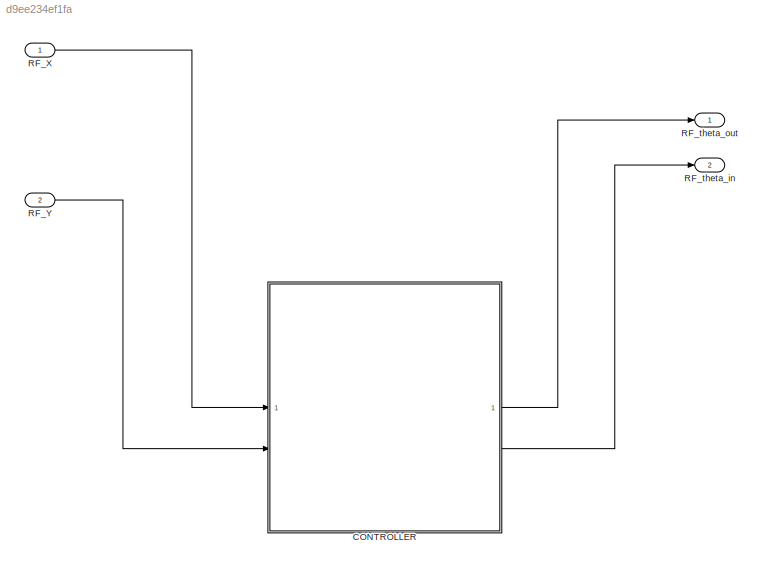
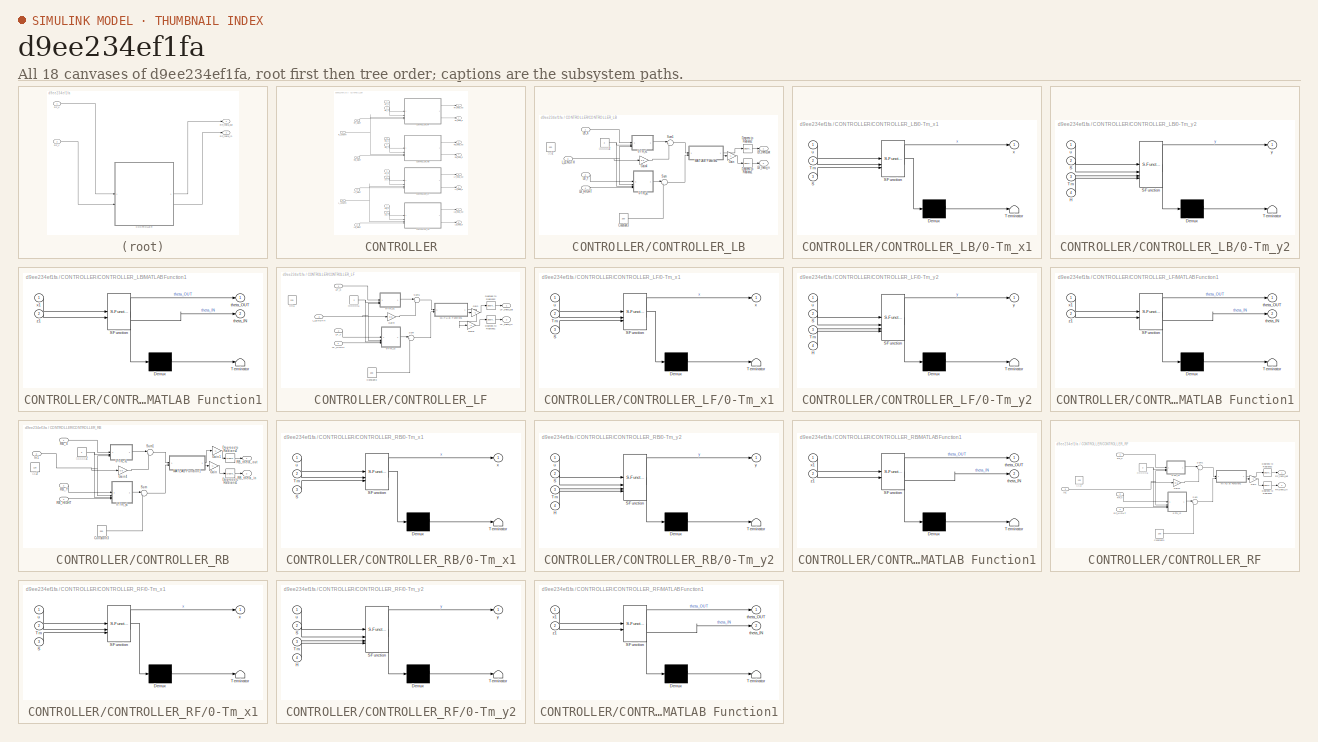
[diagram: thumbnail index - all 18 canvases of the model, root first then tree order]
MODEL slx_d9ee234ef1fa
KIND model
CONFIG AbsTol = auto
CONFIG EnableMultiTasking = off
CONFIG FixedStep = 0.001
CONFIG MaxStep = auto
CONFIG MinStep = auto
CONFIG RelTol = 1e-3
CONFIG SampleTimeConstraint = Unconstrained
CONFIG SolverName = FixedStepAuto
CONFIG StartTime = 0.0
CONFIG StopTime = 10.0
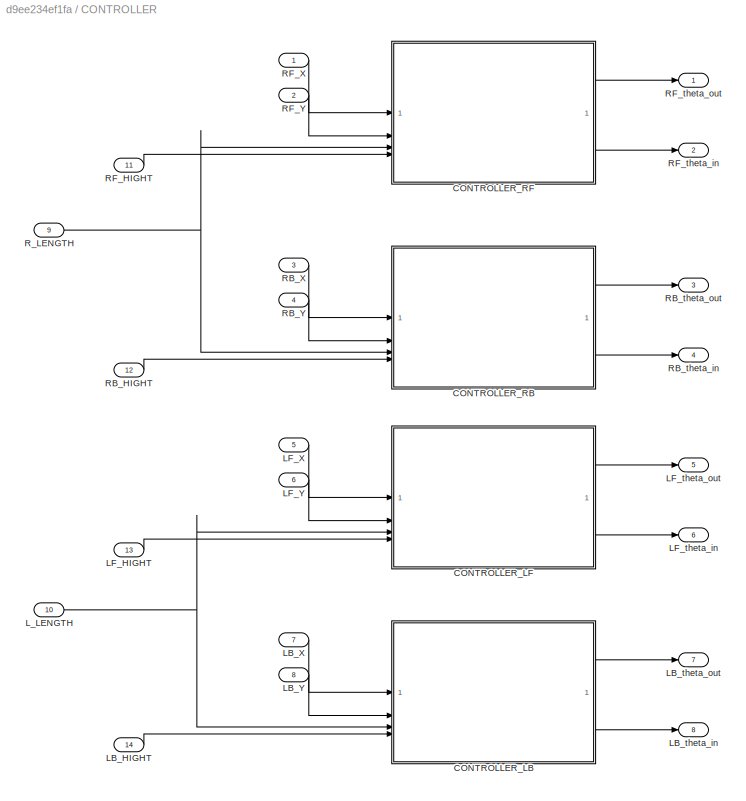
BLOCK [SubSystem] CONTROLLER
BLOCK [SubSystem] CONTROLLER/CONTROLLER_LB
BLOCK [SubSystem] CONTROLLER/CONTROLLER_LB/0-Tm_x1
  ErrorFcn = Stateflow.Translate.translate
  PermitHierarchicalResolution = ExplicitOnly
  SFBlockType = MATLAB Function
  TreatAsAtomicUnit = on
BLOCK [Demux] CONTROLLER/CONTROLLER_LB/0-Tm_x1/ Demux 
  Outputs = 1
BLOCK [S-Function] CONTROLLER/CONTROLLER_LB/0-Tm_x1/ SFunction 
  EnableBusSupport = on
  FunctionName = sf_sfun
  PortCounts = [3 2]
  SFcnIsStateOwnerBlock = off
  SFunctionDeploymentMode = off
  Tag = Stateflow S-Function 10
BLOCK [Terminator] CONTROLLER/CONTROLLER_LB/0-Tm_x1/ Terminator 
BLOCK [Inport] CONTROLLER/CONTROLLER_LB/0-Tm_x1/S
  Port = 3
BLOCK [Inport] CONTROLLER/CONTROLLER_LB/0-Tm_x1/Tm
  Port = 2
BLOCK [Inport] CONTROLLER/CONTROLLER_LB/0-Tm_x1/u
BLOCK [Outport] CONTROLLER/CONTROLLER_LB/0-Tm_x1/x
  VectorParamsAs1DForOutWhenUnconnected = off
BLOCK [SubSystem] CONTROLLER/CONTROLLER_LB/0-Tm_y2
  ErrorFcn = Stateflow.Translate.translate
  PermitHierarchicalResolution = ExplicitOnly
  SFBlockType = MATLAB Function
  TreatAsAtomicUnit = on
BLOCK [Demux] CONTROLLER/CONTROLLER_LB/0-Tm_y2/ Demux 
  Outputs = 1
BLOCK [S-Function] CONTROLLER/CONTROLLER_LB/0-Tm_y2/ SFunction 
  EnableBusSupport = on
  FunctionName = sf_sfun
  PortCounts = [4 2]
  SFcnIsStateOwnerBlock = off
  SFunctionDeploymentMode = off
  Tag = Stateflow S-Function 11
BLOCK [Terminator] CONTROLLER/CONTROLLER_LB/0-Tm_y2/ Terminator 
BLOCK [Inport] CONTROLLER/CONTROLLER_LB/0-Tm_y2/H
  Port = 4
BLOCK [Inport] CONTROLLER/CONTROLLER_LB/0-Tm_y2/S
  Port = 2
BLOCK [Inport] CONTROLLER/CONTROLLER_LB/0-Tm_y2/Tm
  Port = 3
BLOCK [Inport] CONTROLLER/CONTROLLER_LB/0-Tm_y2/u
BLOCK [Outport] CONTROLLER/CONTROLLER_LB/0-Tm_y2/y
  VectorParamsAs1DForOutWhenUnconnected = off
BLOCK [Constant] CONTROLLER/CONTROLLER_LB/Constant3
  Value = 200
BLOCK [Reference] CONTROLLER/CONTROLLER_LB/Degrees to Radians1  REF=simulink_extras/Transformations/Degrees to
Radians
  SourceBlock = simulink_extras/Transformations/Degrees to\nRadians
  SourceType = DegreesToRadians
BLOCK [Reference] CONTROLLER/CONTROLLER_LB/Degrees to Radians2  REF=simulink_extras/Transformations/Degrees to
Radians
  SourceBlock = simulink_extras/Transformations/Degrees to\nRadians
  SourceType = DegreesToRadians
BLOCK [Gain] CONTROLLER/CONTROLLER_LB/Gain
  Commented = through
  Gain = -1
BLOCK [Gain] CONTROLLER/CONTROLLER_LB/Gain4
  Gain = 0.5
BLOCK [Inport] CONTROLLER/CONTROLLER_LB/LB_HIGHT
  OutDataTypeStr = single
  Port = 4
BLOCK [Inport] CONTROLLER/CONTROLLER_LB/LB_X
  OutDataTypeStr = single
BLOCK [Inport] CONTROLLER/CONTROLLER_LB/LB_Y
  OutDataTypeStr = single
  Port = 2
BLOCK [Outport] CONTROLLER/CONTROLLER_LB/LB_theta_in
  OutDataTypeStr = single
  Port = 2
BLOCK [Outport] CONTROLLER/CONTROLLER_LB/LB_theta_out
  OutDataTypeStr = single
BLOCK [Inport] CONTROLLER/CONTROLLER_LB/L_LENGTH
  OutDataTypeStr = single
  Port = 3
BLOCK [SubSystem] CONTROLLER/CONTROLLER_LB/MATLAB Function1
  ErrorFcn = Stateflow.Translate.translate
  PermitHierarchicalResolution = ExplicitOnly
  SFBlockType = MATLAB Function
  TreatAsAtomicUnit = on
BLOCK [Demux] CONTROLLER/CONTROLLER_LB/MATLAB Function1/ Demux 
  Outputs = 1
BLOCK [S-Function] CONTROLLER/CONTROLLER_LB/MATLAB Function1/ SFunction 
  EnableBusSupport = on
  FunctionName = sf_sfun
  PortCounts = [2 3]
  SFcnIsStateOwnerBlock = off
  SFunctionDeploymentMode = off
  Tag = Stateflow S-Function 12
BLOCK [Terminator] CONTROLLER/CONTROLLER_LB/MATLAB Function1/ Terminator 
BLOCK [Outport] CONTROLLER/CONTROLLER_LB/MATLAB Function1/theta_IN
  Port = 2
BLOCK [Outport] CONTROLLER/CONTROLLER_LB/MATLAB Function1/theta_OUT
  VectorParamsAs1DForOutWhenUnconnected = off
BLOCK [Inport] CONTROLLER/CONTROLLER_LB/MATLAB Function1/x1
BLOCK [Inport] CONTROLLER/CONTROLLER_LB/MATLAB Function1/z1
  Port = 2
BLOCK [Sum] CONTROLLER/CONTROLLER_LB/Sum
  Inputs = |+-
BLOCK [Sum] CONTROLLER/CONTROLLER_LB/Sum1
  Inputs = |+-
BLOCK [Constant] CONTROLLER/CONTROLLER_LB/摆动相周期2
  Value = 2
BLOCK [Constant] CONTROLLER/CONTROLLER_LB/步长2
  Value = 120
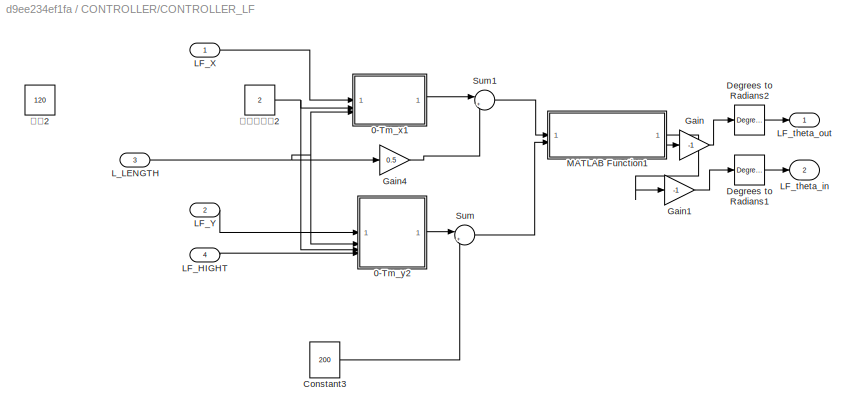
BLOCK [SubSystem] CONTROLLER/CONTROLLER_LF
BLOCK [SubSystem] CONTROLLER/CONTROLLER_LF/0-Tm_x1
  ErrorFcn = Stateflow.Translate.translate
  PermitHierarchicalResolution = ExplicitOnly
  SFBlockType = MATLAB Function
  TreatAsAtomicUnit = on
BLOCK [Demux] CONTROLLER/CONTROLLER_LF/0-Tm_x1/ Demux 
  Outputs = 1
BLOCK [S-Function] CONTROLLER/CONTROLLER_LF/0-Tm_x1/ SFunction 
  EnableBusSupport = on
  FunctionName = sf_sfun
  PortCounts = [3 2]
  SFcnIsStateOwnerBlock = off
  SFunctionDeploymentMode = off
  Tag = Stateflow S-Function 7
BLOCK [Terminator] CONTROLLER/CONTROLLER_LF/0-Tm_x1/ Terminator 
BLOCK [Inport] CONTROLLER/CONTROLLER_LF/0-Tm_x1/S
  Port = 3
BLOCK [Inport] CONTROLLER/CONTROLLER_LF/0-Tm_x1/Tm
  Port = 2
BLOCK [Inport] CONTROLLER/CONTROLLER_LF/0-Tm_x1/u
BLOCK [Outport] CONTROLLER/CONTROLLER_LF/0-Tm_x1/x
  VectorParamsAs1DForOutWhenUnconnected = off
BLOCK [SubSystem] CONTROLLER/CONTROLLER_LF/0-Tm_y2
  ErrorFcn = Stateflow.Translate.translate
  PermitHierarchicalResolution = ExplicitOnly
  SFBlockType = MATLAB Function
  TreatAsAtomicUnit = on
BLOCK [Demux] CONTROLLER/CONTROLLER_LF/0-Tm_y2/ Demux 
  Outputs = 1
BLOCK [S-Function] CONTROLLER/CONTROLLER_LF/0-Tm_y2/ SFunction 
  EnableBusSupport = on
  FunctionName = sf_sfun
  PortCounts = [4 2]
  SFcnIsStateOwnerBlock = off
  SFunctionDeploymentMode = off
  Tag = Stateflow S-Function 8
BLOCK [Terminator] CONTROLLER/CONTROLLER_LF/0-Tm_y2/ Terminator 
BLOCK [Inport] CONTROLLER/CONTROLLER_LF/0-Tm_y2/H
  Port = 4
BLOCK [Inport] CONTROLLER/CONTROLLER_LF/0-Tm_y2/S
  Port = 2
BLOCK [Inport] CONTROLLER/CONTROLLER_LF/0-Tm_y2/Tm
  Port = 3
BLOCK [Inport] CONTROLLER/CONTROLLER_LF/0-Tm_y2/u
BLOCK [Outport] CONTROLLER/CONTROLLER_LF/0-Tm_y2/y
  VectorParamsAs1DForOutWhenUnconnected = off
BLOCK [Constant] CONTROLLER/CONTROLLER_LF/Constant3
  Value = 200
BLOCK [Reference] CONTROLLER/CONTROLLER_LF/Degrees to Radians1  REF=simulink_extras/Transformations/Degrees to
Radians
  SourceBlock = simulink_extras/Transformations/Degrees to\nRadians
  SourceType = DegreesToRadians
BLOCK [Reference] CONTROLLER/CONTROLLER_LF/Degrees to Radians2  REF=simulink_extras/Transformations/Degrees to
Radians
  SourceBlock = simulink_extras/Transformations/Degrees to\nRadians
  SourceType = DegreesToRadians
BLOCK [Gain] CONTROLLER/CONTROLLER_LF/Gain
  Gain = -1
BLOCK [Gain] CONTROLLER/CONTROLLER_LF/Gain1
  Gain = -1
BLOCK [Gain] CONTROLLER/CONTROLLER_LF/Gain4
  Gain = 0.5
BLOCK [Inport] CONTROLLER/CONTROLLER_LF/LF_HIGHT
  OutDataTypeStr = single
  Port = 4
BLOCK [Inport] CONTROLLER/CONTROLLER_LF/LF_X
  OutDataTypeStr = single
BLOCK [Inport] CONTROLLER/CONTROLLER_LF/LF_Y
  OutDataTypeStr = single
  Port = 2
BLOCK [Outport] CONTROLLER/CONTROLLER_LF/LF_theta_in
  OutDataTypeStr = single
  Port = 2
BLOCK [Outport] CONTROLLER/CONTROLLER_LF/LF_theta_out
  OutDataTypeStr = single
BLOCK [Inport] CONTROLLER/CONTROLLER_LF/L_LENGTH
  OutDataTypeStr = single
  Port = 3
BLOCK [SubSystem] CONTROLLER/CONTROLLER_LF/MATLAB Function1
  ErrorFcn = Stateflow.Translate.translate
  PermitHierarchicalResolution = ExplicitOnly
  SFBlockType = MATLAB Function
  TreatAsAtomicUnit = on
BLOCK [Demux] CONTROLLER/CONTROLLER_LF/MATLAB Function1/ Demux 
  Outputs = 1
BLOCK [S-Function] CONTROLLER/CONTROLLER_LF/MATLAB Function1/ SFunction 
  EnableBusSupport = on
  FunctionName = sf_sfun
  PortCounts = [2 3]
  SFcnIsStateOwnerBlock = off
  SFunctionDeploymentMode = off
  Tag = Stateflow S-Function 9
BLOCK [Terminator] CONTROLLER/CONTROLLER_LF/MATLAB Function1/ Terminator 
BLOCK [Outport] CONTROLLER/CONTROLLER_LF/MATLAB Function1/theta_IN
  Port = 2
BLOCK [Outport] CONTROLLER/CONTROLLER_LF/MATLAB Function1/theta_OUT
  VectorParamsAs1DForOutWhenUnconnected = off
BLOCK [Inport] CONTROLLER/CONTROLLER_LF/MATLAB Function1/x1
BLOCK [Inport] CONTROLLER/CONTROLLER_LF/MATLAB Function1/z1
  Port = 2
BLOCK [Sum] CONTROLLER/CONTROLLER_LF/Sum
  Inputs = |+-
BLOCK [Sum] CONTROLLER/CONTROLLER_LF/Sum1
  Inputs = |+-
BLOCK [Constant] CONTROLLER/CONTROLLER_LF/摆动相周期2
  Value = 2
BLOCK [Constant] CONTROLLER/CONTROLLER_LF/步长2
  Value = 120
BLOCK [SubSystem] CONTROLLER/CONTROLLER_RB
BLOCK [SubSystem] CONTROLLER/CONTROLLER_RB/0-Tm_x1
  ErrorFcn = Stateflow.Translate.translate
  PermitHierarchicalResolution = ExplicitOnly
  SFBlockType = MATLAB Function
  TreatAsAtomicUnit = on
BLOCK [Demux] CONTROLLER/CONTROLLER_RB/0-Tm_x1/ Demux 
  Outputs = 1
BLOCK [S-Function] CONTROLLER/CONTROLLER_RB/0-Tm_x1/ SFunction 
  EnableBusSupport = on
  FunctionName = sf_sfun
  PortCounts = [3 2]
  SFcnIsStateOwnerBlock = off
  SFunctionDeploymentMode = off
  Tag = Stateflow S-Function 3
BLOCK [Terminator] CONTROLLER/CONTROLLER_RB/0-Tm_x1/ Terminator 
BLOCK [Inport] CONTROLLER/CONTROLLER_RB/0-Tm_x1/S
  Port = 3
BLOCK [Inport] CONTROLLER/CONTROLLER_RB/0-Tm_x1/Tm
  Port = 2
BLOCK [Inport] CONTROLLER/CONTROLLER_RB/0-Tm_x1/u
BLOCK [Outport] CONTROLLER/CONTROLLER_RB/0-Tm_x1/x
  VectorParamsAs1DForOutWhenUnconnected = off
BLOCK [SubSystem] CONTROLLER/CONTROLLER_RB/0-Tm_y2
  ErrorFcn = Stateflow.Translate.translate
  PermitHierarchicalResolution = ExplicitOnly
  SFBlockType = MATLAB Function
  TreatAsAtomicUnit = on
BLOCK [Demux] CONTROLLER/CONTROLLER_RB/0-Tm_y2/ Demux 
  Outputs = 1
BLOCK [S-Function] CONTROLLER/CONTROLLER_RB/0-Tm_y2/ SFunction 
  EnableBusSupport = on
  FunctionName = sf_sfun
  PortCounts = [4 2]
  SFcnIsStateOwnerBlock = off
  SFunctionDeploymentMode = off
  Tag = Stateflow S-Function 4
BLOCK [Terminator] CONTROLLER/CONTROLLER_RB/0-Tm_y2/ Terminator 
BLOCK [Inport] CONTROLLER/CONTROLLER_RB/0-Tm_y2/H
  Port = 4
BLOCK [Inport] CONTROLLER/CONTROLLER_RB/0-Tm_y2/S
  Port = 2
BLOCK [Inport] CONTROLLER/CONTROLLER_RB/0-Tm_y2/Tm
  Port = 3
BLOCK [Inport] CONTROLLER/CONTROLLER_RB/0-Tm_y2/u
BLOCK [Outport] CONTROLLER/CONTROLLER_RB/0-Tm_y2/y
  VectorParamsAs1DForOutWhenUnconnected = off
BLOCK [Constant] CONTROLLER/CONTROLLER_RB/Constant3
  Value = 200
BLOCK [Reference] CONTROLLER/CONTROLLER_RB/Degrees to Radians1  REF=simulink_extras/Transformations/Degrees to
Radians
  SourceBlock = simulink_extras/Transformations/Degrees to\nRadians
  SourceType = DegreesToRadians
BLOCK [Reference] CONTROLLER/CONTROLLER_RB/Degrees to Radians2  REF=simulink_extras/Transformations/Degrees to
Radians
  SourceBlock = simulink_extras/Transformations/Degrees to\nRadians
  SourceType = DegreesToRadians
BLOCK [Gain] CONTROLLER/CONTROLLER_RB/Gain
  Gain = -1
BLOCK [Gain] CONTROLLER/CONTROLLER_RB/Gain1
  Gain = -1
BLOCK [Gain] CONTROLLER/CONTROLLER_RB/Gain4
  Gain = 0.5
BLOCK [Inport] CONTROLLER/CONTROLLER_RB/In1
  OutDataTypeStr = single
  Port = 3
BLOCK [SubSystem] CONTROLLER/CONTROLLER_RB/MATLAB Function1
  ErrorFcn = Stateflow.Translate.translate
  PermitHierarchicalResolution = ExplicitOnly
  SFBlockType = MATLAB Function
  TreatAsAtomicUnit = on
BLOCK [Demux] CONTROLLER/CONTROLLER_RB/MATLAB Function1/ Demux 
  Outputs = 1
BLOCK [S-Function] CONTROLLER/CONTROLLER_RB/MATLAB Function1/ SFunction 
  EnableBusSupport = on
  FunctionName = sf_sfun
  PortCounts = [2 3]
  SFcnIsStateOwnerBlock = off
  SFunctionDeploymentMode = off
  Tag = Stateflow S-Function 5
BLOCK [Terminator] CONTROLLER/CONTROLLER_RB/MATLAB Function1/ Terminator 
BLOCK [Outport] CONTROLLER/CONTROLLER_RB/MATLAB Function1/theta_IN
  Port = 2
BLOCK [Outport] CONTROLLER/CONTROLLER_RB/MATLAB Function1/theta_OUT
  VectorParamsAs1DForOutWhenUnconnected = off
BLOCK [Inport] CONTROLLER/CONTROLLER_RB/MATLAB Function1/x1
BLOCK [Inport] CONTROLLER/CONTROLLER_RB/MATLAB Function1/z1
  Port = 2
BLOCK [Inport] CONTROLLER/CONTROLLER_RB/RB_HIGHT
  OutDataTypeStr = single
  Port = 4
BLOCK [Inport] CONTROLLER/CONTROLLER_RB/RB_X
  OutDataTypeStr = single
BLOCK [Inport] CONTROLLER/CONTROLLER_RB/RB_Y
  OutDataTypeStr = single
  Port = 2
BLOCK [Outport] CONTROLLER/CONTROLLER_RB/RB_theta_in
  OutDataTypeStr = single
  Port = 2
BLOCK [Outport] CONTROLLER/CONTROLLER_RB/RB_theta_out
  OutDataTypeStr = single
BLOCK [Sum] CONTROLLER/CONTROLLER_RB/Sum
  Inputs = |+-
BLOCK [Sum] CONTROLLER/CONTROLLER_RB/Sum1
  Inputs = |+-
BLOCK [Constant] CONTROLLER/CONTROLLER_RB/摆动相周期2
  Value = 2
BLOCK [Constant] CONTROLLER/CONTROLLER_RB/步长2
  Commented = on
  Value = 120
BLOCK [SubSystem] CONTROLLER/CONTROLLER_RF
BLOCK [SubSystem] CONTROLLER/CONTROLLER_RF/0-Tm_x1
  ErrorFcn = Stateflow.Translate.translate
  PermitHierarchicalResolution = ExplicitOnly
  SFBlockType = MATLAB Function
  TreatAsAtomicUnit = on
BLOCK [Demux] CONTROLLER/CONTROLLER_RF/0-Tm_x1/ Demux 
  Outputs = 1
BLOCK [S-Function] CONTROLLER/CONTROLLER_RF/0-Tm_x1/ SFunction 
  EnableBusSupport = on
  FunctionName = sf_sfun
  PortCounts = [3 2]
  SFcnIsStateOwnerBlock = off
  SFunctionDeploymentMode = off
  Tag = Stateflow S-Function 1
BLOCK [Terminator] CONTROLLER/CONTROLLER_RF/0-Tm_x1/ Terminator 
BLOCK [Inport] CONTROLLER/CONTROLLER_RF/0-Tm_x1/S
  Port = 3
BLOCK [Inport] CONTROLLER/CONTROLLER_RF/0-Tm_x1/Tm
  Port = 2
BLOCK [Inport] CONTROLLER/CONTROLLER_RF/0-Tm_x1/u
BLOCK [Outport] CONTROLLER/CONTROLLER_RF/0-Tm_x1/x
  VectorParamsAs1DForOutWhenUnconnected = off
BLOCK [SubSystem] CONTROLLER/CONTROLLER_RF/0-Tm_y2
  ErrorFcn = Stateflow.Translate.translate
  PermitHierarchicalResolution = ExplicitOnly
  SFBlockType = MATLAB Function
  TreatAsAtomicUnit = on
BLOCK [Demux] CONTROLLER/CONTROLLER_RF/0-Tm_y2/ Demux 
  Outputs = 1
BLOCK [S-Function] CONTROLLER/CONTROLLER_RF/0-Tm_y2/ SFunction 
  EnableBusSupport = on
  FunctionName = sf_sfun
  PortCounts = [4 2]
  SFcnIsStateOwnerBlock = off
  SFunctionDeploymentMode = off
  Tag = Stateflow S-Function 2
BLOCK [Terminator] CONTROLLER/CONTROLLER_RF/0-Tm_y2/ Terminator 
BLOCK [Inport] CONTROLLER/CONTROLLER_RF/0-Tm_y2/H
  Port = 4
BLOCK [Inport] CONTROLLER/CONTROLLER_RF/0-Tm_y2/S
  Port = 2
BLOCK [Inport] CONTROLLER/CONTROLLER_RF/0-Tm_y2/Tm
  Port = 3
BLOCK [Inport] CONTROLLER/CONTROLLER_RF/0-Tm_y2/u
BLOCK [Outport] CONTROLLER/CONTROLLER_RF/0-Tm_y2/y
  VectorParamsAs1DForOutWhenUnconnected = off
BLOCK [Constant] CONTROLLER/CONTROLLER_RF/Constant3
  Value = 200
BLOCK [Reference] CONTROLLER/CONTROLLER_RF/Degrees to Radians1  REF=simulink_extras/Transformations/Degrees to
Radians
  SourceBlock = simulink_extras/Transformations/Degrees to\nRadians
  SourceType = DegreesToRadians
BLOCK [Reference] CONTROLLER/CONTROLLER_RF/Degrees to Radians2  REF=simulink_extras/Transformations/Degrees to
Radians
  SourceBlock = simulink_extras/Transformations/Degrees to\nRadians
  SourceType = DegreesToRadians
BLOCK [Gain] CONTROLLER/CONTROLLER_RF/Gain
  Commented = through
  Gain = -1
BLOCK [Gain] CONTROLLER/CONTROLLER_RF/Gain4
  Gain = 0.5
BLOCK [Inport] CONTROLLER/CONTROLLER_RF/In1
  OutDataTypeStr = single
  Port = 3
BLOCK [SubSystem] CONTROLLER/CONTROLLER_RF/MATLAB Function1
  ErrorFcn = Stateflow.Translate.translate
  PermitHierarchicalResolution = ExplicitOnly
  SFBlockType = MATLAB Function
  TreatAsAtomicUnit = on
BLOCK [Demux] CONTROLLER/CONTROLLER_RF/MATLAB Function1/ Demux 
  Outputs = 1
BLOCK [S-Function] CONTROLLER/CONTROLLER_RF/MATLAB Function1/ SFunction 
  EnableBusSupport = on
  FunctionName = sf_sfun
  PortCounts = [2 3]
  SFcnIsStateOwnerBlock = off
  SFunctionDeploymentMode = off
  Tag = Stateflow S-Function 6
BLOCK [Terminator] CONTROLLER/CONTROLLER_RF/MATLAB Function1/ Terminator 
BLOCK [Outport] CONTROLLER/CONTROLLER_RF/MATLAB Function1/theta_IN
  Port = 2
BLOCK [Outport] CONTROLLER/CONTROLLER_RF/MATLAB Function1/theta_OUT
  VectorParamsAs1DForOutWhenUnconnected = off
BLOCK [Inport] CONTROLLER/CONTROLLER_RF/MATLAB Function1/x1
BLOCK [Inport] CONTROLLER/CONTROLLER_RF/MATLAB Function1/z1
  Port = 2
BLOCK [Inport] CONTROLLER/CONTROLLER_RF/RF_HIGHT
  OutDataTypeStr = single
  Port = 4
BLOCK [Inport] CONTROLLER/CONTROLLER_RF/RF_X
  OutDataTypeStr = single
BLOCK [Inport] CONTROLLER/CONTROLLER_RF/RF_Y
  OutDataTypeStr = single
  Port = 2
BLOCK [Outport] CONTROLLER/CONTROLLER_RF/RF_theta_in
  OutDataTypeStr = single
  Port = 2
BLOCK [Outport] CONTROLLER/CONTROLLER_RF/RF_theta_out
  OutDataTypeStr = single
BLOCK [Sum] CONTROLLER/CONTROLLER_RF/Sum
  Inputs = |+-
BLOCK [Sum] CONTROLLER/CONTROLLER_RF/Sum1
  Inputs = |+-
BLOCK [Constant] CONTROLLER/CONTROLLER_RF/摆动相周期2
  Value = 2
BLOCK [Constant] CONTROLLER/CONTROLLER_RF/步长2
  Commented = on
  Value = 120
BLOCK [Inport] CONTROLLER/LB_HIGHT
  OutDataTypeStr = single
  Port = 14
BLOCK [Inport] CONTROLLER/LB_X
  OutDataTypeStr = single
  Port = 7
BLOCK [Inport] CONTROLLER/LB_Y
  OutDataTypeStr = single
  Port = 8
BLOCK [Outport] CONTROLLER/LB_theta_in
  OutDataTypeStr = single
  Port = 8
BLOCK [Outport] CONTROLLER/LB_theta_out
  OutDataTypeStr = single
  Port = 7
BLOCK [Inport] CONTROLLER/LF_HIGHT
  OutDataTypeStr = single
  Port = 13
BLOCK [Inport] CONTROLLER/LF_X
  OutDataTypeStr = single
  Port = 5
BLOCK [Inport] CONTROLLER/LF_Y
  OutDataTypeStr = single
  Port = 6
BLOCK [Outport] CONTROLLER/LF_theta_in
  OutDataTypeStr = single
  Port = 6
BLOCK [Outport] CONTROLLER/LF_theta_out
  OutDataTypeStr = single
  Port = 5
BLOCK [Inport] CONTROLLER/L_LENGTH
  OutDataTypeStr = single
  Port = 10
BLOCK [Inport] CONTROLLER/RB_HIGHT
  OutDataTypeStr = single
  Port = 12
BLOCK [Inport] CONTROLLER/RB_X
  OutDataTypeStr = single
  Port = 3
BLOCK [Inport] CONTROLLER/RB_Y
  OutDataTypeStr = single
  Port = 4
BLOCK [Outport] CONTROLLER/RB_theta_in
  OutDataTypeStr = single
  Port = 4
BLOCK [Outport] CONTROLLER/RB_theta_out
  OutDataTypeStr = single
  Port = 3
BLOCK [Inport] CONTROLLER/RF_HIGHT
  OutDataTypeStr = single
  Port = 11
BLOCK [Inport] CONTROLLER/RF_X
  OutDataTypeStr = single
BLOCK [Inport] CONTROLLER/RF_Y
  OutDataTypeStr = single
  Port = 2
BLOCK [Outport] CONTROLLER/RF_theta_in
  OutDataTypeStr = single
  Port = 2
BLOCK [Outport] CONTROLLER/RF_theta_out
  OutDataTypeStr = single
BLOCK [Inport] CONTROLLER/R_LENGTH
  OutDataTypeStr = single
  Port = 9
BLOCK [Inport] RF_X
  OutDataTypeStr = single
BLOCK [Inport] RF_Y
  OutDataTypeStr = single
  Port = 2
BLOCK [Outport] RF_theta_in
  OutDataTypeStr = single
  Port = 2
BLOCK [Outport] RF_theta_out
  OutDataTypeStr = single
LINE CONTROLLER/CONTROLLER_LB/0-Tm_x1:1 -> CONTROLLER/CONTROLLER_LB/Sum1:1
LINE CONTROLLER/CONTROLLER_LB/0-Tm_y2:1 -> CONTROLLER/CONTROLLER_LB/Sum:1
LINE CONTROLLER/CONTROLLER_LB/Constant3:1 -> CONTROLLER/CONTROLLER_LB/Sum:2
LINE CONTROLLER/CONTROLLER_LB/Degrees to Radians1:1 -> CONTROLLER/CONTROLLER_LB/LB_theta_in:1
LINE CONTROLLER/CONTROLLER_LB/Degrees to Radians2:1 -> CONTROLLER/CONTROLLER_LB/LB_theta_out:1
LINE CONTROLLER/CONTROLLER_LB/Gain4:1 -> CONTROLLER/CONTROLLER_LB/Sum1:2
LINE CONTROLLER/CONTROLLER_LB/Gain:1 -> CONTROLLER/CONTROLLER_LB/Degrees to Radians1:1
LINE CONTROLLER/CONTROLLER_LB/LB_HIGHT:1 -> CONTROLLER/CONTROLLER_LB/0-Tm_y2:4
LINE CONTROLLER/CONTROLLER_LB/LB_X:1 -> CONTROLLER/CONTROLLER_LB/0-Tm_x1:1
LINE CONTROLLER/CONTROLLER_LB/LB_Y:1 -> CONTROLLER/CONTROLLER_LB/0-Tm_y2:1
NET CONTROLLER/CONTROLLER_LB/L_LENGTH:1 -> CONTROLLER/CONTROLLER_LB/0-Tm_x1:3, CONTROLLER/CONTROLLER_LB/0-Tm_y2:2, CONTROLLER/CONTROLLER_LB/Gain4:1
LINE CONTROLLER/CONTROLLER_LB/MATLAB Function1:1 -> CONTROLLER/CONTROLLER_LB/Degrees to Radians2:1
LINE CONTROLLER/CONTROLLER_LB/MATLAB Function1:2 -> CONTROLLER/CONTROLLER_LB/Gain:1
LINE CONTROLLER/CONTROLLER_LB/Sum1:1 -> CONTROLLER/CONTROLLER_LB/MATLAB Function1:1
LINE CONTROLLER/CONTROLLER_LB/Sum:1 -> CONTROLLER/CONTROLLER_LB/MATLAB Function1:2
NET CONTROLLER/CONTROLLER_LB/摆动相周期2:1 -> CONTROLLER/CONTROLLER_LB/0-Tm_x1:2, CONTROLLER/CONTROLLER_LB/0-Tm_y2:3
LINE CONTROLLER/CONTROLLER_LB:1 -> CONTROLLER/LB_theta_out:1
LINE CONTROLLER/CONTROLLER_LB:2 -> CONTROLLER/LB_theta_in:1
LINE CONTROLLER/CONTROLLER_LF/0-Tm_x1:1 -> CONTROLLER/CONTROLLER_LF/Sum1:1
LINE CONTROLLER/CONTROLLER_LF/0-Tm_y2:1 -> CONTROLLER/CONTROLLER_LF/Sum:1
LINE CONTROLLER/CONTROLLER_LF/Constant3:1 -> CONTROLLER/CONTROLLER_LF/Sum:2
LINE CONTROLLER/CONTROLLER_LF/Degrees to Radians1:1 -> CONTROLLER/CONTROLLER_LF/LF_theta_in:1
LINE CONTROLLER/CONTROLLER_LF/Degrees to Radians2:1 -> CONTROLLER/CONTROLLER_LF/LF_theta_out:1
LINE CONTROLLER/CONTROLLER_LF/Gain1:1 -> CONTROLLER/CONTROLLER_LF/Degrees to Radians1:1
LINE CONTROLLER/CONTROLLER_LF/Gain4:1 -> CONTROLLER/CONTROLLER_LF/Sum1:2
LINE CONTROLLER/CONTROLLER_LF/Gain:1 -> CONTROLLER/CONTROLLER_LF/Degrees to Radians2:1
LINE CONTROLLER/CONTROLLER_LF/LF_HIGHT:1 -> CONTROLLER/CONTROLLER_LF/0-Tm_y2:4
LINE CONTROLLER/CONTROLLER_LF/LF_X:1 -> CONTROLLER/CONTROLLER_LF/0-Tm_x1:1
LINE CONTROLLER/CONTROLLER_LF/LF_Y:1 -> CONTROLLER/CONTROLLER_LF/0-Tm_y2:1
NET CONTROLLER/CONTROLLER_LF/L_LENGTH:1 -> CONTROLLER/CONTROLLER_LF/0-Tm_x1:3, CONTROLLER/CONTROLLER_LF/0-Tm_y2:2, CONTROLLER/CONTROLLER_LF/Gain4:1
LINE CONTROLLER/CONTROLLER_LF/MATLAB Function1:1 -> CONTROLLER/CONTROLLER_LF/Gain1:1
LINE CONTROLLER/CONTROLLER_LF/MATLAB Function1:2 -> CONTROLLER/CONTROLLER_LF/Gain:1
LINE CONTROLLER/CONTROLLER_LF/Sum1:1 -> CONTROLLER/CONTROLLER_LF/MATLAB Function1:1
LINE CONTROLLER/CONTROLLER_LF/Sum:1 -> CONTROLLER/CONTROLLER_LF/MATLAB Function1:2
NET CONTROLLER/CONTROLLER_LF/摆动相周期2:1 -> CONTROLLER/CONTROLLER_LF/0-Tm_x1:2, CONTROLLER/CONTROLLER_LF/0-Tm_y2:3
LINE CONTROLLER/CONTROLLER_LF:1 -> CONTROLLER/LF_theta_out:1
LINE CONTROLLER/CONTROLLER_LF:2 -> CONTROLLER/LF_theta_in:1
LINE CONTROLLER/CONTROLLER_RB/0-Tm_x1:1 -> CONTROLLER/CONTROLLER_RB/Sum1:1
LINE CONTROLLER/CONTROLLER_RB/0-Tm_y2:1 -> CONTROLLER/CONTROLLER_RB/Sum:1
LINE CONTROLLER/CONTROLLER_RB/Constant3:1 -> CONTROLLER/CONTROLLER_RB/Sum:2
LINE CONTROLLER/CONTROLLER_RB/Degrees to Radians1:1 -> CONTROLLER/CONTROLLER_RB/RB_theta_in:1
LINE CONTROLLER/CONTROLLER_RB/Degrees to Radians2:1 -> CONTROLLER/CONTROLLER_RB/RB_theta_out:1
LINE CONTROLLER/CONTROLLER_RB/Gain1:1 -> CONTROLLER/CONTROLLER_RB/Degrees to Radians2:1
LINE CONTROLLER/CONTROLLER_RB/Gain4:1 -> CONTROLLER/CONTROLLER_RB/Sum1:2
LINE CONTROLLER/CONTROLLER_RB/Gain:1 -> CONTROLLER/CONTROLLER_RB/Degrees to Radians1:1
NET CONTROLLER/CONTROLLER_RB/In1:1 -> CONTROLLER/CONTROLLER_RB/0-Tm_x1:3, CONTROLLER/CONTROLLER_RB/0-Tm_y2:2, CONTROLLER/CONTROLLER_RB/Gain4:1
LINE CONTROLLER/CONTROLLER_RB/MATLAB Function1:1 -> CONTROLLER/CONTROLLER_RB/Gain1:1
LINE CONTROLLER/CONTROLLER_RB/MATLAB Function1:2 -> CONTROLLER/CONTROLLER_RB/Gain:1
LINE CONTROLLER/CONTROLLER_RB/RB_HIGHT:1 -> CONTROLLER/CONTROLLER_RB/0-Tm_y2:4
LINE CONTROLLER/CONTROLLER_RB/RB_X:1 -> CONTROLLER/CONTROLLER_RB/0-Tm_x1:1
LINE CONTROLLER/CONTROLLER_RB/RB_Y:1 -> CONTROLLER/CONTROLLER_RB/0-Tm_y2:1
LINE CONTROLLER/CONTROLLER_RB/Sum1:1 -> CONTROLLER/CONTROLLER_RB/MATLAB Function1:1
LINE CONTROLLER/CONTROLLER_RB/Sum:1 -> CONTROLLER/CONTROLLER_RB/MATLAB Function1:2
NET CONTROLLER/CONTROLLER_RB/摆动相周期2:1 -> CONTROLLER/CONTROLLER_RB/0-Tm_x1:2, CONTROLLER/CONTROLLER_RB/0-Tm_y2:3
LINE CONTROLLER/CONTROLLER_RB:1 -> CONTROLLER/RB_theta_out:1
LINE CONTROLLER/CONTROLLER_RB:2 -> CONTROLLER/RB_theta_in:1
LINE CONTROLLER/CONTROLLER_RF/0-Tm_x1:1 -> CONTROLLER/CONTROLLER_RF/Sum1:1
LINE CONTROLLER/CONTROLLER_RF/0-Tm_y2:1 -> CONTROLLER/CONTROLLER_RF/Sum:1
LINE CONTROLLER/CONTROLLER_RF/Constant3:1 -> CONTROLLER/CONTROLLER_RF/Sum:2
LINE CONTROLLER/CONTROLLER_RF/Degrees to Radians1:1 -> CONTROLLER/CONTROLLER_RF/RF_theta_in:1
LINE CONTROLLER/CONTROLLER_RF/Degrees to Radians2:1 -> CONTROLLER/CONTROLLER_RF/RF_theta_out:1
LINE CONTROLLER/CONTROLLER_RF/Gain4:1 -> CONTROLLER/CONTROLLER_RF/Sum1:2
LINE CONTROLLER/CONTROLLER_RF/Gain:1 -> CONTROLLER/CONTROLLER_RF/Degrees to Radians1:1
NET CONTROLLER/CONTROLLER_RF/In1:1 -> CONTROLLER/CONTROLLER_RF/0-Tm_x1:3, CONTROLLER/CONTROLLER_RF/0-Tm_y2:2, CONTROLLER/CONTROLLER_RF/Gain4:1
LINE CONTROLLER/CONTROLLER_RF/MATLAB Function1:1 -> CONTROLLER/CONTROLLER_RF/Degrees to Radians2:1
LINE CONTROLLER/CONTROLLER_RF/MATLAB Function1:2 -> CONTROLLER/CONTROLLER_RF/Gain:1
LINE CONTROLLER/CONTROLLER_RF/RF_HIGHT:1 -> CONTROLLER/CONTROLLER_RF/0-Tm_y2:4
LINE CONTROLLER/CONTROLLER_RF/RF_X:1 -> CONTROLLER/CONTROLLER_RF/0-Tm_x1:1
LINE CONTROLLER/CONTROLLER_RF/RF_Y:1 -> CONTROLLER/CONTROLLER_RF/0-Tm_y2:1
LINE CONTROLLER/CONTROLLER_RF/Sum1:1 -> CONTROLLER/CONTROLLER_RF/MATLAB Function1:1
LINE CONTROLLER/CONTROLLER_RF/Sum:1 -> CONTROLLER/CONTROLLER_RF/MATLAB Function1:2
NET CONTROLLER/CONTROLLER_RF/摆动相周期2:1 -> CONTROLLER/CONTROLLER_RF/0-Tm_x1:2, CONTROLLER/CONTROLLER_RF/0-Tm_y2:3
LINE CONTROLLER/CONTROLLER_RF:1 -> CONTROLLER/RF_theta_out:1
LINE CONTROLLER/CONTROLLER_RF:2 -> CONTROLLER/RF_theta_in:1
LINE CONTROLLER/LB_HIGHT:1 -> CONTROLLER/CONTROLLER_LB:4
LINE CONTROLLER/LB_X:1 -> CONTROLLER/CONTROLLER_LB:1
LINE CONTROLLER/LB_Y:1 -> CONTROLLER/CONTROLLER_LB:2
LINE CONTROLLER/LF_HIGHT:1 -> CONTROLLER/CONTROLLER_LF:4
LINE CONTROLLER/LF_X:1 -> CONTROLLER/CONTROLLER_LF:1
LINE CONTROLLER/LF_Y:1 -> CONTROLLER/CONTROLLER_LF:2
NET CONTROLLER/L_LENGTH:1 -> CONTROLLER/CONTROLLER_LB:3, CONTROLLER/CONTROLLER_LF:3
LINE CONTROLLER/RB_HIGHT:1 -> CONTROLLER/CONTROLLER_RB:4
LINE CONTROLLER/RB_X:1 -> CONTROLLER/CONTROLLER_RB:1
LINE CONTROLLER/RB_Y:1 -> CONTROLLER/CONTROLLER_RB:2
LINE CONTROLLER/RF_HIGHT:1 -> CONTROLLER/CONTROLLER_RF:4
LINE CONTROLLER/RF_X:1 -> CONTROLLER/CONTROLLER_RF:1
LINE CONTROLLER/RF_Y:1 -> CONTROLLER/CONTROLLER_RF:2
NET CONTROLLER/R_LENGTH:1 -> CONTROLLER/CONTROLLER_RB:3, CONTROLLER/CONTROLLER_RF:3
LINE CONTROLLER:1 -> RF_theta_out:1
LINE CONTROLLER:2 -> RF_theta_in:1
LINE RF_X:1 -> CONTROLLER:1
LINE RF_Y:1 -> CONTROLLER:2
note: NET lines group one-source signal fan-out (src -> all destinations, sorted); 1:1 wires keep LINE
CHART CONTROLLER/CONTROLLER_RF/0-Tm_x1 states=1 transitions=1
  STATE_LABEL 'eML_blk_kernel()'
  STATE_LABEL 'SCRIPT:\nfunction x = fcn(u,Tm,S)\n\nif u>0\n    x =S*(u/Tm-1/(2*pi)*sin(2*pi*u/Tm));\nelse \n    u=-u;\n     x =S*(u/Tm-1/(2*pi)*sin(2*pi*u/Tm));\nend\n'
CHART CONTROLLER/CONTROLLER_LB/0-Tm_y2 states=1 transitions=1
  STATE_LABEL 'eML_blk_kernel()'
  STATE_LABEL 'SCRIPT:\nfunction y = fcn(u,S,Tm,H)\n\nn=4;\nif u>0\n    y=2*H*(u/Tm-1/(n*pi)*sin(n*pi*u/Tm)).*(u>=0&u<Tm/2)+2*H*(1-u/Tm+1/(n*pi)*sin(n*pi*u/Tm)).*(u>=Tm/2&u<Tm);;\nelse \n    y = single(0);\nend\n'  <repeated x3 — deduplicated; at blocks: 0-Tm_y2>
CHART CONTROLLER/CONTROLLER_LB/MATLAB Function1 states=1 transitions=1
  STATE_LABEL 'eML_blk_kernel()'
  STATE_LABEL 'SCRIPT:\nfunction [theta_OUT, theta_IN ] = fcn(x1, z1)\n\n%#codegen\n\n\nL1 = 100;\nL2 = 180;\n\nx = x1;\ny = z1;\n\nL = sqrt(x^2 + y^2);\n\ntheta_left =  rad2deg(asin(x/L));\n\ntheta_right = rad2deg( acos((L^2 + L1^2-L2^2)/(2*L1*L)));\n\n\n\ntheta_OUT = theta_right- theta_left ;\n\ntheta_IN = theta_right + theta_left;\n\n\n\n'  <repeated x4 — deduplicated; at blocks: MATLAB Function1>
CHART CONTROLLER/CONTROLLER_RF/0-Tm_y2 states=1 transitions=1
  STATE_LABEL 'eML_blk_kernel()'
  STATE_LABEL 'SCRIPT:\nfunction y = fcn(u,S,Tm,H)\n\nn=4;\nif u>0\n    y=2*H*(u/Tm-1/(n*pi)*sin(n*pi*u/Tm)).*(u>=0&u<Tm/2)+2*H*(1-u/Tm+1/(n*pi)*sin(n*pi*u/Tm)).*(u>=Tm/2&u<Tm);;\nelse \n   \n    y =single(0);\nend\n'
CHART CONTROLLER/CONTROLLER_RB/0-Tm_x1 states=1 transitions=1
  STATE_LABEL 'eML_blk_kernel()'
  STATE_LABEL 'SCRIPT:\nfunction x = fcn(u,Tm,S)\n\nif u>0\n    x =S*(u/Tm-1/(2*pi)*sin(2*pi*u/Tm));\nelse \n    u=-u;\n     x =S*(u/Tm-1/(2*pi)*sin(2*pi*u/Tm));\nend\n'
CHART CONTROLLER/CONTROLLER_RB/0-Tm_y2 states=1 transitions=1
  STATE_LABEL 'eML_blk_kernel()'
CHART CONTROLLER/CONTROLLER_RB/MATLAB Function1 states=1 transitions=1
  STATE_LABEL 'eML_blk_kernel()'
CHART CONTROLLER/CONTROLLER_RF/MATLAB Function1 states=1 transitions=1
  STATE_LABEL 'eML_blk_kernel()'
CHART CONTROLLER/CONTROLLER_LF/0-Tm_x1 states=1 transitions=1
  STATE_LABEL 'eML_blk_kernel()'
  STATE_LABEL 'SCRIPT:\nfunction x = fcn(u,Tm,S)\n\nif u>0\n    x =S*(u/Tm-1/(2*pi)*sin(2*pi*u/Tm));\nelse \n    u=-u;\n     x =S*(u/Tm-1/(2*pi)*sin(2*pi*u/Tm));\nend\n'
CHART CONTROLLER/CONTROLLER_LF/0-Tm_y2 states=1 transitions=1
  STATE_LABEL 'eML_blk_kernel()'
CHART CONTROLLER/CONTROLLER_LF/MATLAB Function1 states=1 transitions=1
  STATE_LABEL 'eML_blk_kernel()'
CHART CONTROLLER/CONTROLLER_LB/0-Tm_x1 states=1 transitions=1
  STATE_LABEL 'eML_blk_kernel()'
  STATE_LABEL 'SCRIPT:\nfunction x = fcn(u,Tm,S)\n\nif u>0\n    x =S*(u/Tm-1/(2*pi)*sin(2*pi*u/Tm));\nelse \n    u=-u;\n     x =S*(u/Tm-1/(2*pi)*sin(2*pi*u/Tm));\nend\n'
CHART  states=0 transitions=0
CHART  states=0 transitions=0
CHART  states=0 transitions=0
CHART  states=0 transitions=0
CHART  states=0 transitions=0
CHART  states=0 transitions=0
CHART  states=0 transitions=0
CHART  states=0 transitions=0
CHART  states=0 transitions=0
CHART  states=0 transitions=0
CHART  states=0 transitions=0
CHART  states=0 transitions=0
